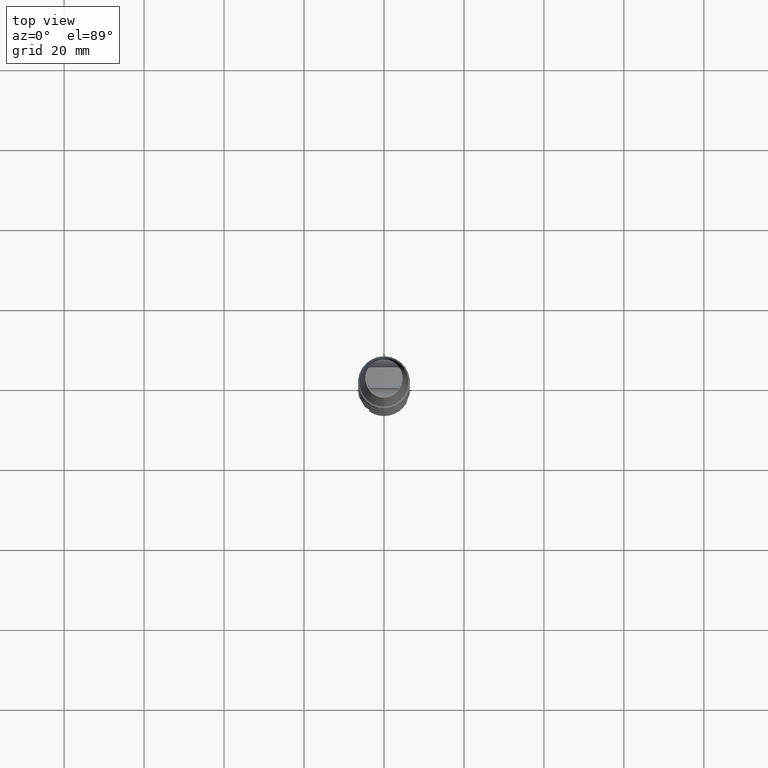
[diagram: clean part render]
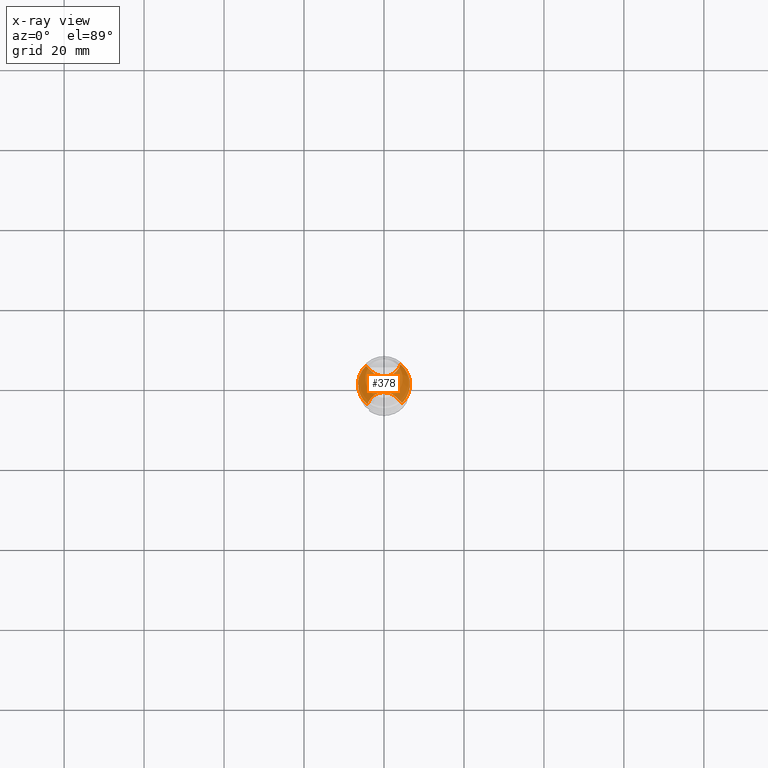
[diagram: x-ray — body ghosted, one internal face saturated and labeled with its STEP entity id]
A machine part, top view, then the same camera in x-ray: the body is ghosted and one INTERNAL B-rep face — a face not visible from any outside direction — is saturated and labeled: STEP entity #378.
In plain terms, the highlighted planar face has unit normal (-0, 0, 1).
Its self-contained STEP definition (entity closure, byte-faithful):
#276=EDGE_CURVE('',#390,#326,#777,.T.);
#298=EDGE_CURVE('',#624,#326,#801,.T.);
#302=EDGE_CURVE('',#356,#492,#806,.T.);
#326=VERTEX_POINT('',#832);
#356=VERTEX_POINT('',#864);
#378=ADVANCED_FACE('',(#891),#892,.T.);
#390=VERTEX_POINT('',#904);
#492=VERTEX_POINT('',#1016);
#508=VERTEX_POINT('',#1036);
#554=EDGE_CURVE('',#508,#492,#1085,.T.);
#624=VERTEX_POINT('',#1160);
#708=EDGE_CURVE('',#356,#390,#1251,.T.);
#724=EDGE_CURVE('',#624,#508,#1269,.T.);
#777=B_SPLINE_CURVE_WITH_KNOTS('',3,(#1461,#1462,#1463,#1464),.UNSPECIFIED.,.F.,.F.,(4,4),(0.0,4.68854783633395),.UNSPECIFIED.);
#801=CIRCLE('',#1811,6.4999);
#806=CIRCLE('',#2652,6.4999);
#832=CARTESIAN_POINT('',(-4.51925206355144,4.6717299575303,-35.9));
#864=CARTESIAN_POINT('',(4.13948712457755,5.01132181719122,-35.9));
#891=FACE_OUTER_BOUND('',#2914,.T.);
#892=PLANE('',#2915);
#904=CARTESIAN_POINT('',(-3.06725438271398,3.21954414970436,-35.9));
#1016=CARTESIAN_POINT('',(4.51925206355143,-4.67172995753031,-35.9));
#1036=CARTESIAN_POINT('',(3.06725438271398,-3.21954414970437,-35.9));
#1085=B_SPLINE_CURVE_WITH_KNOTS('',3,(#4370,#4371,#4372,#4373),.UNSPECIFIED.,.F.,.F.,(4,4),(0.0,4.68854783612501),.UNSPECIFIED.);
#1160=CARTESIAN_POINT('',(-4.13948712457754,-5.01132181719122,-35.9));
#1251=B_SPLINE_CURVE_WITH_KNOTS('',3,(#6650,#6651,#6652,#6653,#6654,#6655,#6656,#6657,#6658,#6659,#6660,#6661,#6662,#6663,#6664,#6665),.UNSPECIFIED.,.F.,.F.,(4,2,2,2,2,2,2,4),(0.0,1.69272766620673,3.38528938576231,5.0778253703666,6.77045669752436,8.46324854415955,9.48474749668112,10.5062613168681),.UNSPECIFIED.);
#1269=B_SPLINE_CURVE_WITH_KNOTS('',3,(#6849,#6850,#6851,#6852,#6853,#6854,#6855,#6856,#6857,#6858,#6859,#6860,#6861,#6862,#6863,#6864),.UNSPECIFIED.,.F.,.F.,(4,2,2,2,2,2,2,4),(0.0,1.69272766620675,3.38528938576232,5.07782537036659,6.77045669752433,8.46324854415955,9.48474749668111,10.5062613168681),.UNSPECIFIED.);
#1461=CARTESIAN_POINT('',(-3.06725438278469,3.21954414963366,-35.9));
#1462=CARTESIAN_POINT('',(-4.17228780377942,4.32471337045984,-35.9));
#1463=CARTESIAN_POINT('',(-5.2913443885858,5.44392344522973,-35.9));
#1464=CARTESIAN_POINT('',(-6.39714621457819,6.5499,-35.9));
#1811=AXIS2_PLACEMENT_3D('',#6959,#6960,#6961);
#2652=AXIS2_PLACEMENT_3D('',#6970,#6971,#6972);
#2914=EDGE_LOOP('',(#7071,#7072,#7073,#7074,#7075,#7076));
#2915=AXIS2_PLACEMENT_3D('',#7077,#7078,#7079);
#4370=CARTESIAN_POINT('',(3.06725438278469,-3.21954414963367,-35.9));
#4371=CARTESIAN_POINT('',(4.17228780373017,-4.3247133704106,-35.9));
#4372=CARTESIAN_POINT('',(5.2913443885809,-5.44392344522483,-35.9));
#4373=CARTESIAN_POINT('',(6.39714621457818,-6.5499,-35.9));
#6650=CARTESIAN_POINT('',(4.32198762332252,6.5499,-35.9));
#6651=CARTESIAN_POINT('',(4.3567711030581,5.98673060198166,-35.9));
#6652=CARTESIAN_POINT('',(4.28122432116167,5.42215440346622,-35.9));
#6653=CARTESIAN_POINT('',(3.91796917489396,4.35379366624625,-35.9));
#6654=CARTESIAN_POINT('',(3.63375631242431,3.86022337164424,-35.9));
#6655=CARTESIAN_POINT('',(2.89213237675276,3.00981356482723,-35.9));
#6656=CARTESIAN_POINT('',(2.44181813834898,2.6611068177494,-35.9));
#6657=CARTESIAN_POINT('',(1.4328420382678,2.15590972891982,-35.9));
#6658=CARTESIAN_POINT('',(0.883824290602955,2.00426186104254,-35.9));
#6659=CARTESIAN_POINT('',(-0.24149395156173,1.91992846596278,-35.9));
#6660=CARTESIAN_POINT('',(-0.807036541703555,1.98806987421916,-35.9));
#6661=CARTESIAN_POINT('',(-1.66739449168009,2.26804019730336,-35.9));
#6662=CARTESIAN_POINT('',(-1.97763963155897,2.41119867401505,-35.9));
#6663=CARTESIAN_POINT('',(-2.55819979538701,2.76717352725625,-35.9));
#6664=CARTESIAN_POINT('',(-2.82649729914107,2.97875420769152,-35.9));
#6665=CARTESIAN_POINT('',(-3.06725438271398,3.21954414970437,-35.9));
#6849=CARTESIAN_POINT('',(-4.32198762332252,-6.5499,-35.9));
#6850=CARTESIAN_POINT('',(-4.3567711030581,-5.98673060198165,-35.9));
#6851=CARTESIAN_POINT('',(-4.28122432116167,-5.42215440346622,-35.9));
#6852=CARTESIAN_POINT('',(-3.91796917489396,-4.35379366624626,-35.9));
#6853=CARTESIAN_POINT('',(-3.63375631242431,-3.86022337164424,-35.9));
#6854=CARTESIAN_POINT('',(-2.89213237675275,-3.00981356482723,-35.9));
#6855=CARTESIAN_POINT('',(-2.44181813834897,-2.6611068177494,-35.9));
#6856=CARTESIAN_POINT('',(-1.43284203826778,-2.15590972891982,-35.9));
#6857=CARTESIAN_POINT('',(-0.883824290602932,-2.00426186104255,-35.9));
#6858=CARTESIAN_POINT('',(0.24149395156174,-1.91992846596278,-35.9));
#6859=CARTESIAN_POINT('',(0.807036541703562,-1.98806987421917,-35.9));
#6860=CARTESIAN_POINT('',(1.66739449168009,-2.26804019730337,-35.9));
#6861=CARTESIAN_POINT('',(1.97763963155897,-2.41119867401506,-35.9));
#6862=CARTESIAN_POINT('',(2.55819979538701,-2.76717352725626,-35.9));
#6863=CARTESIAN_POINT('',(2.82649729914107,-2.97875420769152,-35.9));
#6864=CARTESIAN_POINT('',(3.06725438271398,-3.21954414970437,-35.9));
#6959=CARTESIAN_POINT('',(0.0,0.0,-35.9));
#6960=DIRECTION('',(0.0,0.0,-1.0));
#6961=DIRECTION('',(0.0,1.0,0.0));
#6970=CARTESIAN_POINT('',(0.0,0.0,-35.9));
#6971=DIRECTION('',(0.0,0.0,-1.0));
#6972=DIRECTION('',(0.0,1.0,0.0));
#7071=ORIENTED_EDGE('',*,*,#554,.T.);
#7072=ORIENTED_EDGE('',*,*,#302,.F.);
#7073=ORIENTED_EDGE('',*,*,#708,.T.);
#7074=ORIENTED_EDGE('',*,*,#276,.T.);
#7075=ORIENTED_EDGE('',*,*,#298,.F.);
#7076=ORIENTED_EDGE('',*,*,#724,.T.);
#7077=CARTESIAN_POINT('',(0.0,3.24995,-35.9));
#7078=DIRECTION('',(-0.0,0.0,1.0));
#7079=DIRECTION('',(0.0,-1.0,0.0));